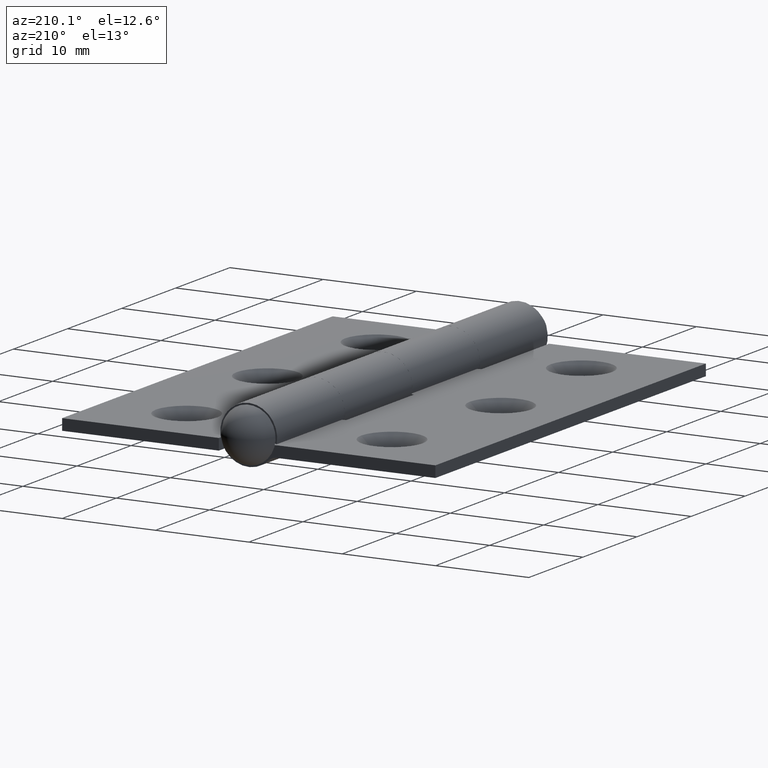
[diagram: clean part render]
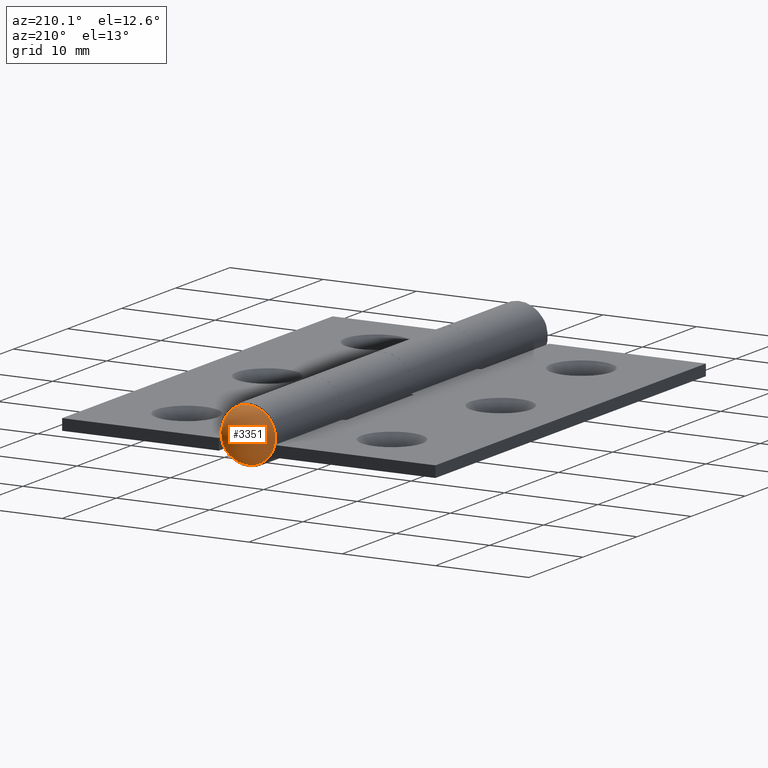
[diagram: same view with one face highlighted and labeled with its STEP entity id]
A machine part, auxiliary view. The second image highlights one B-rep face of the part: STEP entity #3351.
In plain terms, the highlighted spherical surface has radius 2.9786 mm.
Its self-contained STEP definition (entity closure, byte-faithful):
#844 = DIRECTION ( 'NONE',  ( 0.000000000000000000, 0.000000000000000000, -1.000000000000000000 ) ) ;
#1001 = DIRECTION ( 'NONE',  ( -1.144073915355699607E-16, 1.000000000000000000, -0.000000000000000000 ) ) ;
#1144 = EDGE_CURVE ( 'NONE', #5348, #5348, #5460, .T. ) ;
#1583 = AXIS2_PLACEMENT_3D ( 'NONE', #1708, #1001, #3380 ) ;
#1708 = CARTESIAN_POINT ( 'NONE',  ( 2.168404344971009361E-16, 26.10000000000000142, 0.000000000000000000 ) ) ;
#1756 = FACE_OUTER_BOUND ( 'NONE', #4496, .T. ) ;
#2078 = ORIENTED_EDGE ( 'NONE', *, *, #1144, .T. ) ;
#3351 = ADVANCED_FACE ( 'NONE', ( #1756 ), #3452, .T. ) ;
#3380 = DIRECTION ( 'NONE',  ( -1.000000000000000000, 0.000000000000000000, 0.000000000000000000 ) ) ;
#3437 = DIRECTION ( 'NONE',  ( 1.000000000000000000, 0.000000000000000000, 0.000000000000000000 ) ) ;
#3452 = SPHERICAL_SURFACE ( 'NONE', #6655, 2.978551136363637664 ) ;
#4496 = EDGE_LOOP ( 'NONE', ( #2078 ) ) ;
#5348 = VERTEX_POINT ( 'NONE', #7625 ) ;
#5460 = CIRCLE ( 'NONE', #1583, 2.874999999999999556 ) ;
#5859 = CARTESIAN_POINT ( 'NONE',  ( 0.000000000000000000, 25.32144886363636260, 0.000000000000000000 ) ) ;
#6655 = AXIS2_PLACEMENT_3D ( 'NONE', #5859, #844, #3437 ) ;
#7625 = CARTESIAN_POINT ( 'NONE',  ( -2.874999999999999112, 26.10000000000000142, 0.000000000000000000 ) ) ;